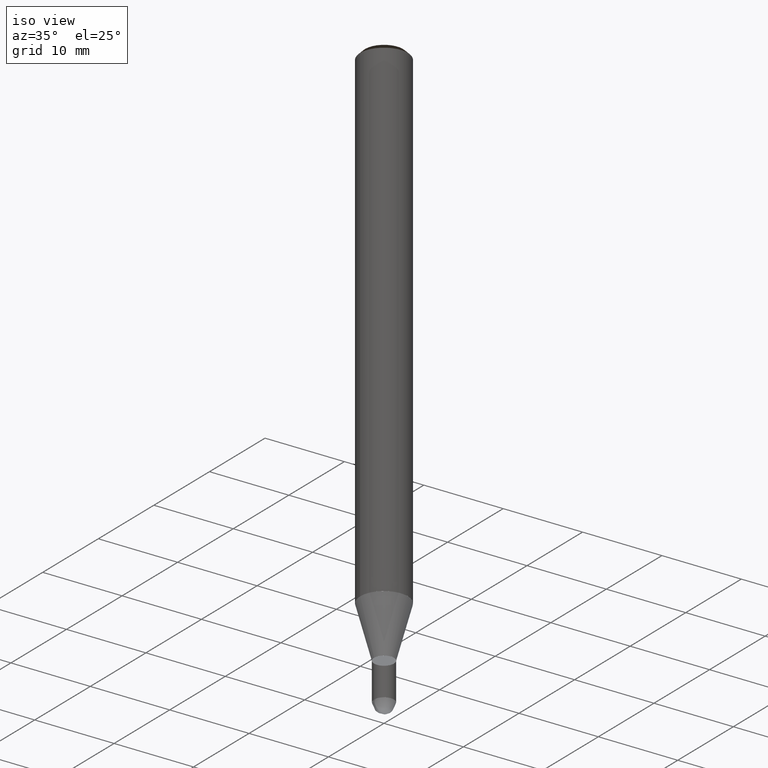
[diagram: clean part render]
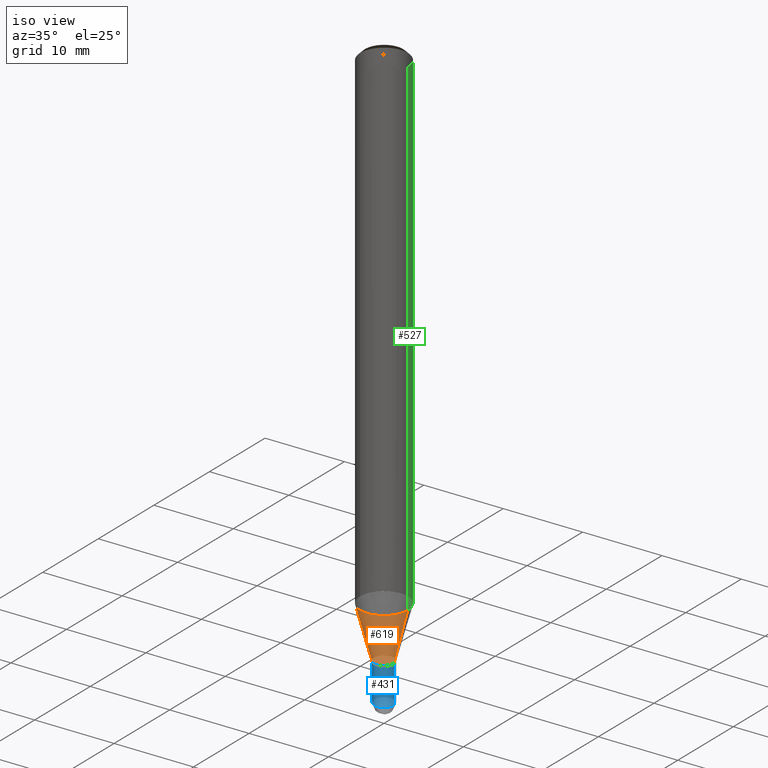
[diagram: same view with three faces highlighted in distinct colors, each labeled with its STEP entity id]
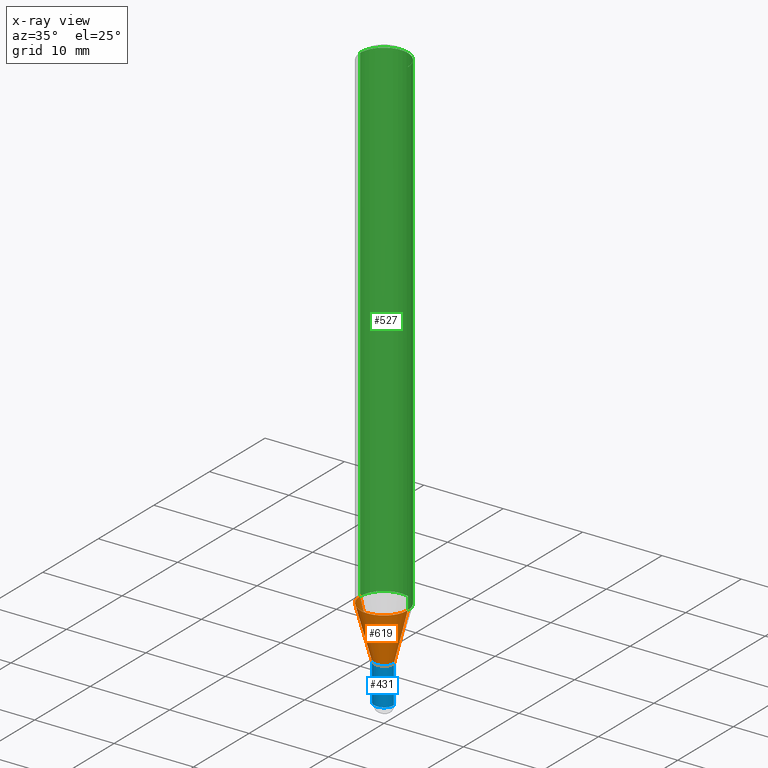
[diagram: x-ray of the same camera — body ghosted, the three highlighted faces saturated]
A machine part, iso view with three faces highlighted in distinct colors.
The next image is the same camera in x-ray (body ghosted, the three faces saturated) — at least one of them is partly hidden behind the body in this view.
Their STEP definitions:

[orange] entity #619 — the highlighted face is a freeform B-spline surface patch.
#306=CARTESIAN_POINT('',(1.25,0.0,-6.531088913246));
#310=CARTESIAN_POINT('',(-1.25,0.0,-6.531088913246));
#311=CARTESIAN_POINT('',(3.0,0.0,0.0));
#315=CARTESIAN_POINT('',(-3.0,0.0,0.0));
#327=CARTESIAN_POINT('',(-1.25,-1.25,-6.531088913246));
#328=CARTESIAN_POINT('',(0.0,-1.25,-6.531088913246));
#329=CARTESIAN_POINT('',(1.25,-1.25,-6.531088913246));
#330=CARTESIAN_POINT('',(-3.0,-3.0,0.0));
#331=CARTESIAN_POINT('',(0.0,-3.0,0.0));
#332=CARTESIAN_POINT('',(3.0,-3.0,0.0));
#600=(
BOUNDED_SURFACE()
B_SPLINE_SURFACE(1,2,(
(#310,#327,#328,#329,#306),
(#315,#330,#331,#332,#311)
), .UNSPECIFIED.,.F.,.F.,.F.)
B_SPLINE_SURFACE_WITH_KNOTS((2,2),(3,2,3),(
0.0,1.0),(
0.0,0.5,1.0), .UNSPECIFIED.)
GEOMETRIC_REPRESENTATION_ITEM()
RATIONAL_B_SPLINE_SURFACE(((1.0,0.707106781187,1.0,0.707106781187,1.0),
(1.0,0.707106781187,1.0,0.707106781187,1.0)
))
REPRESENTATION_ITEM('')
SURFACE()
);
#601=(
BOUNDED_CURVE()
B_SPLINE_CURVE(1,(#315,#310),.UNSPECIFIED.,.F.,.F.)
B_SPLINE_CURVE_WITH_KNOTS((2,2),
(0.0,1.0),.UNSPECIFIED.)
CURVE()
GEOMETRIC_REPRESENTATION_ITEM()
RATIONAL_B_SPLINE_CURVE((1.0,1.0))
REPRESENTATION_ITEM('')
);
#602=(
BOUNDED_CURVE()
B_SPLINE_CURVE(2,(#310,#327,#328,#329,#306),.UNSPECIFIED.,.F.,.F.)
B_SPLINE_CURVE_WITH_KNOTS((3,2,3),
(0.0,0.5,1.0),.UNSPECIFIED.)
CURVE()
GEOMETRIC_REPRESENTATION_ITEM()
RATIONAL_B_SPLINE_CURVE((1.0,0.707106781187,1.0,0.707106781187,1.0))
REPRESENTATION_ITEM('')
);
#603=(
BOUNDED_CURVE()
B_SPLINE_CURVE(1,(#306,#311),.UNSPECIFIED.,.F.,.F.)
B_SPLINE_CURVE_WITH_KNOTS((2,2),
(0.0,1.0),.UNSPECIFIED.)
CURVE()
GEOMETRIC_REPRESENTATION_ITEM()
RATIONAL_B_SPLINE_CURVE((1.0,1.0))
REPRESENTATION_ITEM('')
);
#604=(
BOUNDED_CURVE()
B_SPLINE_CURVE(2,(#311,#332,#331,#330,#315),.UNSPECIFIED.,.F.,.F.)
B_SPLINE_CURVE_WITH_KNOTS((3,2,3),
(0.0,0.5,1.0),.UNSPECIFIED.)
CURVE()
GEOMETRIC_REPRESENTATION_ITEM()
RATIONAL_B_SPLINE_CURVE((1.0,0.707106781187,1.0,0.707106781187,1.0))
REPRESENTATION_ITEM('')
);
#605=VERTEX_POINT('',#306);
#606=VERTEX_POINT('',#310);
#607=VERTEX_POINT('',#311);
#608=VERTEX_POINT('',#315);
#609=EDGE_CURVE('',#608,#606,#601,.T.);
#610=EDGE_CURVE('',#606,#605,#602,.T.);
#611=EDGE_CURVE('',#605,#607,#603,.T.);
#612=EDGE_CURVE('',#607,#608,#604,.T.);
#613=ORIENTED_EDGE('',*,*,#609,.T.);
#614=ORIENTED_EDGE('',*,*,#610,.T.);
#615=ORIENTED_EDGE('',*,*,#611,.T.);
#616=ORIENTED_EDGE('',*,*,#612,.T.);
#617=EDGE_LOOP('',(#613,#614,#615,#616));
#618=FACE_OUTER_BOUND('',#617,.T.);
#619=ADVANCED_FACE('',(#618),#600,.T.);

[blue] entity #431 — the highlighted face is a freeform B-spline surface patch.
#286=CARTESIAN_POINT('',(1.25,0.0,-11.282));
#290=CARTESIAN_POINT('',(-1.25,0.0,-11.282));
#291=CARTESIAN_POINT('',(1.25,0.0,-6.532));
#295=CARTESIAN_POINT('',(-1.25,0.0,-6.532));
#300=CARTESIAN_POINT('',(-1.25,-1.25,-11.282));
#301=CARTESIAN_POINT('',(0.0,-1.25,-11.282));
#302=CARTESIAN_POINT('',(1.25,-1.25,-11.282));
#303=CARTESIAN_POINT('',(-1.25,-1.25,-6.532));
#304=CARTESIAN_POINT('',(0.0,-1.25,-6.532));
#305=CARTESIAN_POINT('',(1.25,-1.25,-6.532));
#412=(
BOUNDED_SURFACE()
B_SPLINE_SURFACE(1,2,(
(#290,#300,#301,#302,#286),
(#295,#303,#304,#305,#291)
), .UNSPECIFIED.,.F.,.F.,.F.)
B_SPLINE_SURFACE_WITH_KNOTS((2,2),(3,2,3),(
0.0,1.0),(
0.0,0.5,1.0), .UNSPECIFIED.)
GEOMETRIC_REPRESENTATION_ITEM()
RATIONAL_B_SPLINE_SURFACE(((1.0,0.707106781187,1.0,0.707106781187,1.0),
(1.0,0.707106781187,1.0,0.707106781187,1.0)
))
REPRESENTATION_ITEM('')
SURFACE()
);
#413=(
BOUNDED_CURVE()
B_SPLINE_CURVE(1,(#295,#290),.UNSPECIFIED.,.F.,.F.)
B_SPLINE_CURVE_WITH_KNOTS((2,2),
(0.0,1.0),.UNSPECIFIED.)
CURVE()
GEOMETRIC_REPRESENTATION_ITEM()
RATIONAL_B_SPLINE_CURVE((1.0,1.0))
REPRESENTATION_ITEM('')
);
#414=(
BOUNDED_CURVE()
B_SPLINE_CURVE(2,(#290,#300,#301,#302,#286),.UNSPECIFIED.,.F.,.F.)
B_SPLINE_CURVE_WITH_KNOTS((3,2,3),
(0.0,0.5,1.0),.UNSPECIFIED.)
CURVE()
GEOMETRIC_REPRESENTATION_ITEM()
RATIONAL_B_SPLINE_CURVE((1.0,0.707106781187,1.0,0.707106781187,1.0))
REPRESENTATION_ITEM('')
);
#415=(
BOUNDED_CURVE()
B_SPLINE_CURVE(1,(#286,#291),.UNSPECIFIED.,.F.,.F.)
B_SPLINE_CURVE_WITH_KNOTS((2,2),
(0.0,1.0),.UNSPECIFIED.)
CURVE()
GEOMETRIC_REPRESENTATION_ITEM()
RATIONAL_B_SPLINE_CURVE((1.0,1.0))
REPRESENTATION_ITEM('')
);
#416=(
BOUNDED_CURVE()
B_SPLINE_CURVE(2,(#291,#305,#304,#303,#295),.UNSPECIFIED.,.F.,.F.)
B_SPLINE_CURVE_WITH_KNOTS((3,2,3),
(0.0,0.5,1.0),.UNSPECIFIED.)
CURVE()
GEOMETRIC_REPRESENTATION_ITEM()
RATIONAL_B_SPLINE_CURVE((1.0,0.707106781187,1.0,0.707106781187,1.0))
REPRESENTATION_ITEM('')
);
#417=VERTEX_POINT('',#286);
#418=VERTEX_POINT('',#290);
#419=VERTEX_POINT('',#291);
#420=VERTEX_POINT('',#295);
#421=EDGE_CURVE('',#420,#418,#413,.T.);
#422=EDGE_CURVE('',#418,#417,#414,.T.);
#423=EDGE_CURVE('',#417,#419,#415,.T.);
#424=EDGE_CURVE('',#419,#420,#416,.T.);
#425=ORIENTED_EDGE('',*,*,#421,.T.);
#426=ORIENTED_EDGE('',*,*,#422,.T.);
#427=ORIENTED_EDGE('',*,*,#423,.T.);
#428=ORIENTED_EDGE('',*,*,#424,.T.);
#429=EDGE_LOOP('',(#425,#426,#427,#428));
#430=FACE_OUTER_BOUND('',#429,.T.);
#431=ADVANCED_FACE('',(#430),#412,.T.);

[green] entity #527 — the highlighted face is a freeform B-spline surface patch.
#311=CARTESIAN_POINT('',(3.0,0.0,0.0));
#312=CARTESIAN_POINT('',(3.0,3.0,0.0));
#313=CARTESIAN_POINT('',(0.0,3.0,0.0));
#314=CARTESIAN_POINT('',(-3.0,3.0,0.0));
#315=CARTESIAN_POINT('',(-3.0,0.0,0.0));
#316=CARTESIAN_POINT('',(3.0,0.0,61.868));
#317=CARTESIAN_POINT('',(3.0,3.0,61.868));
#318=CARTESIAN_POINT('',(0.0,3.0,61.868));
#319=CARTESIAN_POINT('',(-3.0,3.0,61.868));
#320=CARTESIAN_POINT('',(-3.0,0.0,61.868));
#508=(
BOUNDED_SURFACE()
B_SPLINE_SURFACE(1,2,(
(#311,#312,#313,#314,#315),
(#316,#317,#318,#319,#320)
), .UNSPECIFIED.,.F.,.F.,.F.)
B_SPLINE_SURFACE_WITH_KNOTS((2,2),(3,2,3),(
0.0,1.0),(
0.0,0.5,1.0), .UNSPECIFIED.)
GEOMETRIC_REPRESENTATION_ITEM()
RATIONAL_B_SPLINE_SURFACE(((1.0,0.707106781187,1.0,0.707106781187,1.0),
(1.0,0.707106781187,1.0,0.707106781187,1.0)
))
REPRESENTATION_ITEM('')
SURFACE()
);
#509=(
BOUNDED_CURVE()
B_SPLINE_CURVE(2,(#316,#317,#318,#319,#320),.UNSPECIFIED.,.F.,.F.)
B_SPLINE_CURVE_WITH_KNOTS((3,2,3),
(0.0,0.5,1.0),.UNSPECIFIED.)
CURVE()
GEOMETRIC_REPRESENTATION_ITEM()
RATIONAL_B_SPLINE_CURVE((1.0,0.707106781187,1.0,0.707106781187,1.0))
REPRESENTATION_ITEM('')
);
#510=(
BOUNDED_CURVE()
B_SPLINE_CURVE(1,(#320,#315),.UNSPECIFIED.,.F.,.F.)
B_SPLINE_CURVE_WITH_KNOTS((2,2),
(0.0,1.0),.UNSPECIFIED.)
CURVE()
GEOMETRIC_REPRESENTATION_ITEM()
RATIONAL_B_SPLINE_CURVE((1.0,1.0))
REPRESENTATION_ITEM('')
);
#511=(
BOUNDED_CURVE()
B_SPLINE_CURVE(2,(#315,#314,#313,#312,#311),.UNSPECIFIED.,.F.,.F.)
B_SPLINE_CURVE_WITH_KNOTS((3,2,3),
(0.0,0.5,1.0),.UNSPECIFIED.)
CURVE()
GEOMETRIC_REPRESENTATION_ITEM()
RATIONAL_B_SPLINE_CURVE((1.0,0.707106781187,1.0,0.707106781187,1.0))
REPRESENTATION_ITEM('')
);
#512=(
BOUNDED_CURVE()
B_SPLINE_CURVE(1,(#311,#316),.UNSPECIFIED.,.F.,.F.)
B_SPLINE_CURVE_WITH_KNOTS((2,2),
(0.0,1.0),.UNSPECIFIED.)
CURVE()
GEOMETRIC_REPRESENTATION_ITEM()
RATIONAL_B_SPLINE_CURVE((1.0,1.0))
REPRESENTATION_ITEM('')
);
#513=VERTEX_POINT('',#311);
#514=VERTEX_POINT('',#315);
#515=VERTEX_POINT('',#316);
#516=VERTEX_POINT('',#320);
#517=EDGE_CURVE('',#515,#516,#509,.T.);
#518=EDGE_CURVE('',#516,#514,#510,.T.);
#519=EDGE_CURVE('',#514,#513,#511,.T.);
#520=EDGE_CURVE('',#513,#515,#512,.T.);
#521=ORIENTED_EDGE('',*,*,#517,.T.);
#522=ORIENTED_EDGE('',*,*,#518,.T.);
#523=ORIENTED_EDGE('',*,*,#519,.T.);
#524=ORIENTED_EDGE('',*,*,#520,.T.);
#525=EDGE_LOOP('',(#521,#522,#523,#524));
#526=FACE_OUTER_BOUND('',#525,.T.);
#527=ADVANCED_FACE('',(#526),#508,.T.);